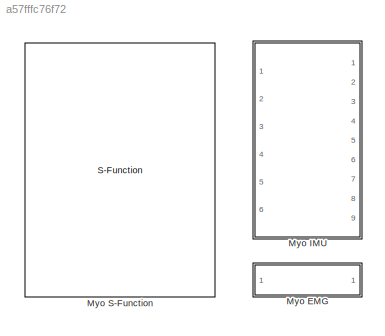
MODEL slx_a57fffc76f72
KIND library
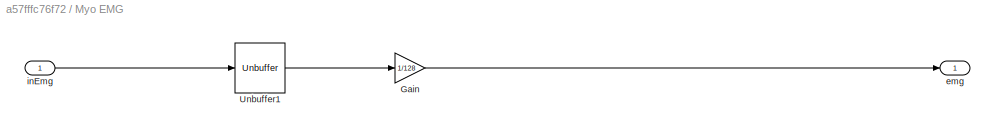
BLOCK [SubSystem] Myo EMG
  FunctionWithSeparateData = off
  MaskHideContents = off
  MinAlgLoopOccurrences = off
  Opaque = off
  Ports = [1, 1]
  PropExecContextOutsideSubsystem = off
  RTWSystemCode = Auto
  RequestExecContextInheritance = off
BLOCK [Gain] Myo EMG/Gain
  Gain = 1/128
  OutDataTypeStr = Inherit: Inherit via internal rule
  ParamDataTypeStr = Inherit: Inherit via internal rule
  SaturateOnIntegerOverflow = off
BLOCK [Unbuffer] Myo EMG/Unbuffer1
  Ports = [1, 1]
  SampleBasedProcessing = Same as frame based
BLOCK [Outport] Myo EMG/emg
  IconDisplay = Port number
BLOCK [Inport] Myo EMG/inEmg
  IconDisplay = Port number
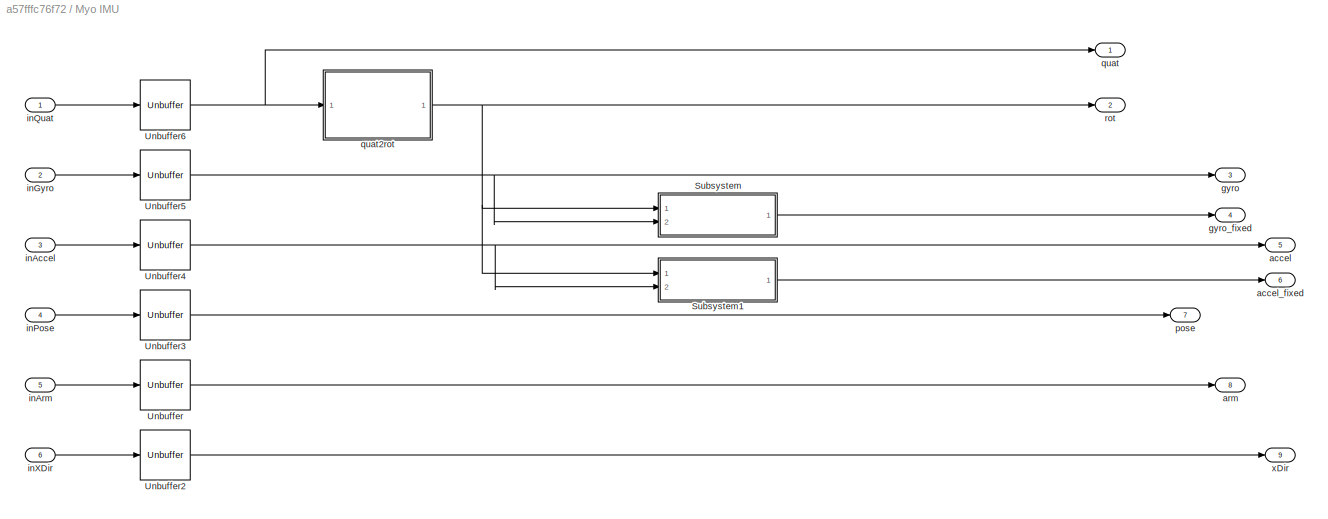
BLOCK [SubSystem] Myo IMU
  FunctionWithSeparateData = off
  MaskHideContents = off
  MinAlgLoopOccurrences = off
  Opaque = off
  Ports = [6, 9]
  PropExecContextOutsideSubsystem = off
  RTWSystemCode = Auto
  RequestExecContextInheritance = off
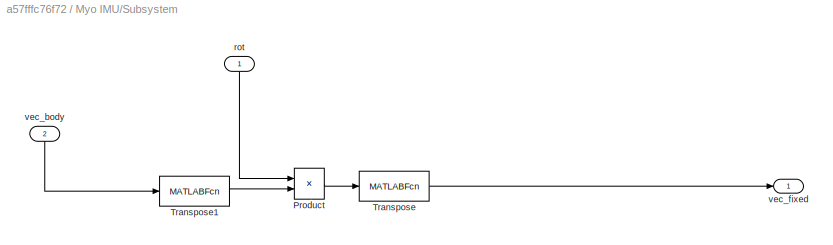
BLOCK [SubSystem] Myo IMU/Subsystem
  FunctionWithSeparateData = off
  MaskHideContents = off
  MinAlgLoopOccurrences = off
  Opaque = off
  Ports = [2, 1]
  PropExecContextOutsideSubsystem = off
  RTWSystemCode = Auto
  RequestExecContextInheritance = off
BLOCK [Product] Myo IMU/Subsystem/Product
  InputSameDT = off
  Multiplication = Matrix(*)
  OutDataTypeStr = Inherit: Inherit via internal rule
  Ports = [2, 1]
  RndMeth = Floor
  SaturateOnIntegerOverflow = off
BLOCK [MATLABFcn] Myo IMU/Subsystem/Transpose
  MATLABFcn = u'
  Output1D = off
  Ports = [1, 1]
BLOCK [MATLABFcn] Myo IMU/Subsystem/Transpose1
  MATLABFcn = u'
  Output1D = off
  Ports = [1, 1]
BLOCK [Inport] Myo IMU/Subsystem/rot
  IconDisplay = Port number
BLOCK [Inport] Myo IMU/Subsystem/vec_body
  IconDisplay = Port number
  Port = 2
BLOCK [Outport] Myo IMU/Subsystem/vec_fixed
  IconDisplay = Port number
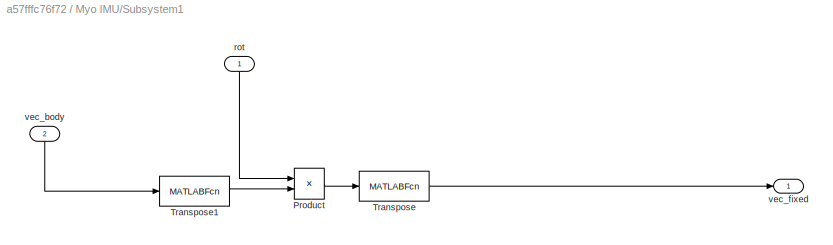
BLOCK [SubSystem] Myo IMU/Subsystem1
  FunctionWithSeparateData = off
  MaskHideContents = off
  MinAlgLoopOccurrences = off
  Opaque = off
  Ports = [2, 1]
  PropExecContextOutsideSubsystem = off
  RTWSystemCode = Auto
  RequestExecContextInheritance = off
BLOCK [Product] Myo IMU/Subsystem1/Product
  InputSameDT = off
  Multiplication = Matrix(*)
  OutDataTypeStr = Inherit: Inherit via internal rule
  Ports = [2, 1]
  RndMeth = Floor
  SaturateOnIntegerOverflow = off
BLOCK [MATLABFcn] Myo IMU/Subsystem1/Transpose
  MATLABFcn = u'
  Output1D = off
  Ports = [1, 1]
BLOCK [MATLABFcn] Myo IMU/Subsystem1/Transpose1
  MATLABFcn = u'
  Output1D = off
  Ports = [1, 1]
BLOCK [Inport] Myo IMU/Subsystem1/rot
  IconDisplay = Port number
BLOCK [Inport] Myo IMU/Subsystem1/vec_body
  IconDisplay = Port number
  Port = 2
BLOCK [Outport] Myo IMU/Subsystem1/vec_fixed
  IconDisplay = Port number
BLOCK [Unbuffer] Myo IMU/Unbuffer
  Ports = [1, 1]
  SampleBasedProcessing = Same as frame based
BLOCK [Unbuffer] Myo IMU/Unbuffer2
  Ports = [1, 1]
  SampleBasedProcessing = Same as frame based
BLOCK [Unbuffer] Myo IMU/Unbuffer3
  Ports = [1, 1]
  SampleBasedProcessing = Same as frame based
BLOCK [Unbuffer] Myo IMU/Unbuffer4
  Ports = [1, 1]
  SampleBasedProcessing = Same as frame based
BLOCK [Unbuffer] Myo IMU/Unbuffer5
  Ports = [1, 1]
  SampleBasedProcessing = Same as frame based
BLOCK [Unbuffer] Myo IMU/Unbuffer6
  Ports = [1, 1]
  SampleBasedProcessing = Same as frame based
  ic = [1,0,0,0;1,0,0,0]
BLOCK [Outport] Myo IMU/accel
  IconDisplay = Port number
  Port = 5
BLOCK [Outport] Myo IMU/accel_fixed
  IconDisplay = Port number
  Port = 6
BLOCK [Outport] Myo IMU/arm
  IconDisplay = Port number
  Port = 8
BLOCK [Outport] Myo IMU/gyro
  IconDisplay = Port number
  Port = 3
BLOCK [Outport] Myo IMU/gyro_fixed
  IconDisplay = Port number
  Port = 4
BLOCK [Inport] Myo IMU/inAccel
  IconDisplay = Port number
  Port = 3
BLOCK [Inport] Myo IMU/inArm
  IconDisplay = Port number
  Port = 5
BLOCK [Inport] Myo IMU/inGyro
  IconDisplay = Port number
  Port = 2
BLOCK [Inport] Myo IMU/inPose
  IconDisplay = Port number
  Port = 4
BLOCK [Inport] Myo IMU/inQuat
  IconDisplay = Port number
BLOCK [Inport] Myo IMU/inXDir
  IconDisplay = Port number
  Port = 6
BLOCK [Outport] Myo IMU/pose
  IconDisplay = Port number
  Port = 7
BLOCK [Outport] Myo IMU/quat
  IconDisplay = Port number
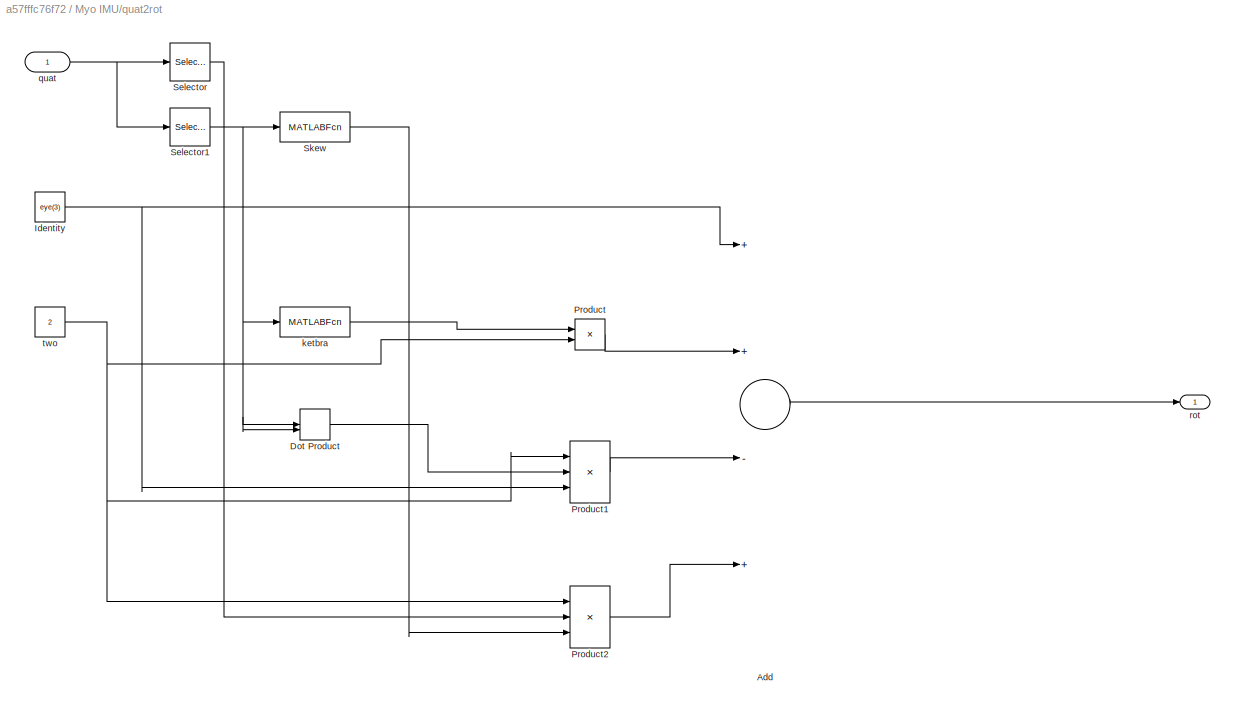
BLOCK [SubSystem] Myo IMU/quat2rot
  FunctionWithSeparateData = off
  MaskHideContents = off
  MinAlgLoopOccurrences = off
  Opaque = off
  Ports = [1, 1]
  PropExecContextOutsideSubsystem = off
  RTWSystemCode = Auto
  RequestExecContextInheritance = off
BLOCK [Sum] Myo IMU/quat2rot/Add
  InputSameDT = off
  Inputs = ++-+
  OutDataTypeStr = Inherit: Inherit via internal rule
  Ports = [4, 1]
  SaturateOnIntegerOverflow = off
BLOCK [DotProduct] Myo IMU/quat2rot/Dot Product
  OutDataTypeStr = Inherit: Inherit via internal rule
BLOCK [Constant] Myo IMU/quat2rot/Identity
  Value = eye(3)
BLOCK [Product] Myo IMU/quat2rot/Product
  InputSameDT = off
  OutDataTypeStr = Inherit: Inherit via internal rule
  Ports = [2, 1]
  RndMeth = Floor
  SaturateOnIntegerOverflow = off
BLOCK [Product] Myo IMU/quat2rot/Product1
  InputSameDT = off
  Inputs = 3
  OutDataTypeStr = Inherit: Inherit via internal rule
  Ports = [3, 1]
  RndMeth = Floor
  SaturateOnIntegerOverflow = off
BLOCK [Product] Myo IMU/quat2rot/Product2
  InputSameDT = off
  Inputs = 3
  OutDataTypeStr = Inherit: Inherit via internal rule
  Ports = [3, 1]
  RndMeth = Floor
  SaturateOnIntegerOverflow = off
BLOCK [Selector] Myo IMU/quat2rot/Selector
  IndexOptions = Index vector (dialog)
  Indices = [1]
  InputPortWidth = 4
  OutputSizes = 1
  Ports = [1, 1]
BLOCK [Selector] Myo IMU/quat2rot/Selector1
  IndexOptions = Index vector (dialog)
  Indices = [2,3,4]
  InputPortWidth = 4
  OutputSizes = 1
  Ports = [1, 1]
BLOCK [MATLABFcn] Myo IMU/quat2rot/Skew
  MATLABFcn = [0,-u(3),u(2);u(3),0,-u(1);-u(2),u(1),0]
  Output1D = off
  Ports = [1, 1]
BLOCK [MATLABFcn] Myo IMU/quat2rot/ketbra
  MATLABFcn = u'*u
  Output1D = off
  Ports = [1, 1]
BLOCK [Inport] Myo IMU/quat2rot/quat
  IconDisplay = Port number
BLOCK [Outport] Myo IMU/quat2rot/rot
  IconDisplay = Port number
BLOCK [Constant] Myo IMU/quat2rot/two
  Value = 2
BLOCK [Outport] Myo IMU/rot
  IconDisplay = Port number
  Port = 2
BLOCK [Outport] Myo IMU/xDir
  IconDisplay = Port number
  Port = 9
BLOCK [S-Function] Myo S-Function
  EnableBusSupport = off
  FunctionName = myo_sfun
  Parameters = emgEnabled,countMyos
  Ports = [0, 7]
LINE Myo EMG/Gain:1 -> Myo EMG/emg:1
LINE Myo EMG/Unbuffer1:1 -> Myo EMG/Gain:1
LINE Myo EMG/inEmg:1 -> Myo EMG/Unbuffer1:1
LINE Myo IMU/Subsystem/Product:1 -> Myo IMU/Subsystem/Transpose:1
LINE Myo IMU/Subsystem/Transpose1:1 -> Myo IMU/Subsystem/Product:2
LINE Myo IMU/Subsystem/Transpose:1 -> Myo IMU/Subsystem/vec_fixed:1
LINE Myo IMU/Subsystem/rot:1 -> Myo IMU/Subsystem/Product:1
LINE Myo IMU/Subsystem/vec_body:1 -> Myo IMU/Subsystem/Transpose1:1
LINE Myo IMU/Subsystem1/Product:1 -> Myo IMU/Subsystem1/Transpose:1
LINE Myo IMU/Subsystem1/Transpose1:1 -> Myo IMU/Subsystem1/Product:2
LINE Myo IMU/Subsystem1/Transpose:1 -> Myo IMU/Subsystem1/vec_fixed:1
LINE Myo IMU/Subsystem1/rot:1 -> Myo IMU/Subsystem1/Product:1
LINE Myo IMU/Subsystem1/vec_body:1 -> Myo IMU/Subsystem1/Transpose1:1
LINE Myo IMU/Subsystem1:1 -> Myo IMU/accel_fixed:1
LINE Myo IMU/Subsystem:1 -> Myo IMU/gyro_fixed:1
LINE Myo IMU/Unbuffer2:1 -> Myo IMU/xDir:1
LINE Myo IMU/Unbuffer3:1 -> Myo IMU/pose:1
NET Myo IMU/Unbuffer4:1 -> Myo IMU/Subsystem1:2, Myo IMU/accel:1
NET Myo IMU/Unbuffer5:1 -> Myo IMU/Subsystem:2, Myo IMU/gyro:1
NET Myo IMU/Unbuffer6:1 -> Myo IMU/quat2rot:1, Myo IMU/quat:1
LINE Myo IMU/Unbuffer:1 -> Myo IMU/arm:1
LINE Myo IMU/inAccel:1 -> Myo IMU/Unbuffer4:1
LINE Myo IMU/inArm:1 -> Myo IMU/Unbuffer:1
LINE Myo IMU/inGyro:1 -> Myo IMU/Unbuffer5:1
LINE Myo IMU/inPose:1 -> Myo IMU/Unbuffer3:1
LINE Myo IMU/inQuat:1 -> Myo IMU/Unbuffer6:1
LINE Myo IMU/inXDir:1 -> Myo IMU/Unbuffer2:1
LINE Myo IMU/quat2rot/Add:1 -> Myo IMU/quat2rot/rot:1
LINE Myo IMU/quat2rot/Dot Product:1 -> Myo IMU/quat2rot/Product1:2
NET Myo IMU/quat2rot/Identity:1 -> Myo IMU/quat2rot/Add:1, Myo IMU/quat2rot/Product1:3
LINE Myo IMU/quat2rot/Product1:1 -> Myo IMU/quat2rot/Add:3
LINE Myo IMU/quat2rot/Product2:1 -> Myo IMU/quat2rot/Add:4
LINE Myo IMU/quat2rot/Product:1 -> Myo IMU/quat2rot/Add:2
NET Myo IMU/quat2rot/Selector1:1 -> Myo IMU/quat2rot/Dot Product:1, Myo IMU/quat2rot/Dot Product:2, Myo IMU/quat2rot/Skew:1, Myo IMU/quat2rot/ketbra:1
LINE Myo IMU/quat2rot/Selector:1 -> Myo IMU/quat2rot/Product2:2
LINE Myo IMU/quat2rot/Skew:1 -> Myo IMU/quat2rot/Product2:3
LINE Myo IMU/quat2rot/ketbra:1 -> Myo IMU/quat2rot/Product:1
NET Myo IMU/quat2rot/quat:1 -> Myo IMU/quat2rot/Selector1:1, Myo IMU/quat2rot/Selector:1
NET Myo IMU/quat2rot/two:1 -> Myo IMU/quat2rot/Product1:1, Myo IMU/quat2rot/Product2:1, Myo IMU/quat2rot/Product:2
NET Myo IMU/quat2rot:1 -> Myo IMU/Subsystem1:1, Myo IMU/Subsystem:1, Myo IMU/rot:1
note: NET lines group one-source signal fan-out (src -> all destinations, sorted); 1:1 wires keep LINE
